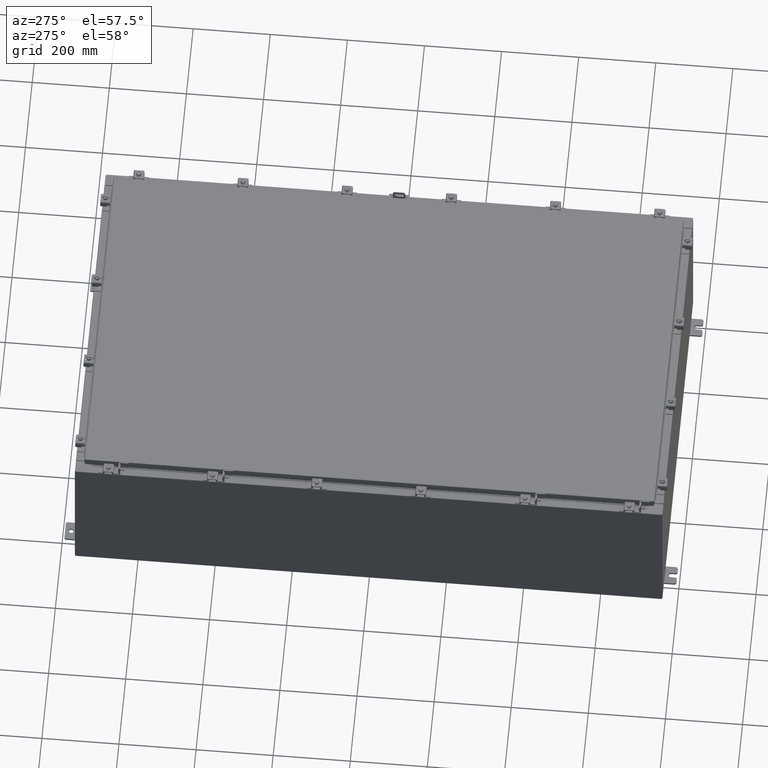
[diagram: clean part render]
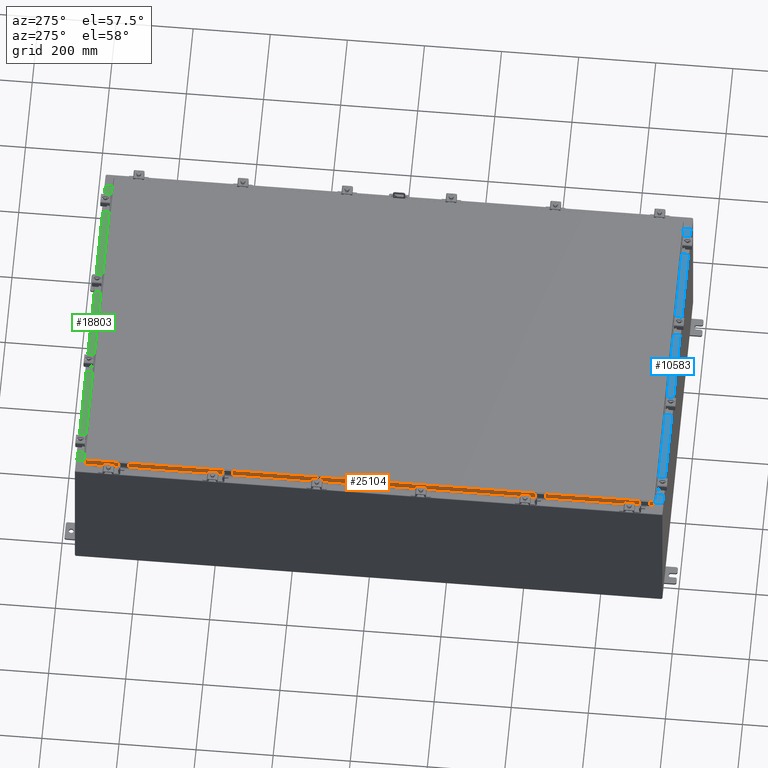
[diagram: same view with three faces highlighted in distinct colors, each labeled with its STEP entity id]
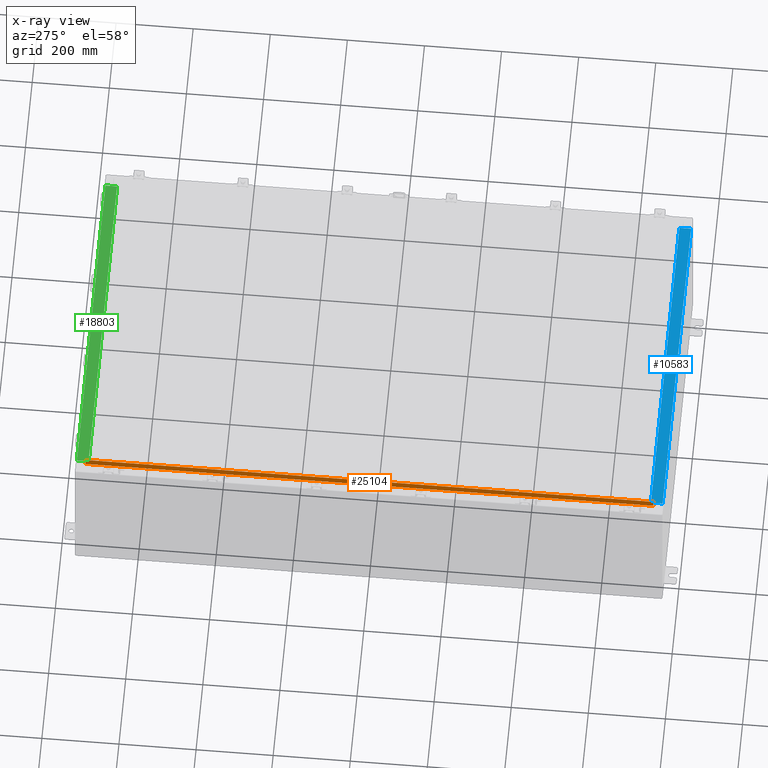
[diagram: x-ray of the same camera — body ghosted, the three highlighted faces saturated]
A machine part, auxiliary view with three faces highlighted in distinct colors.
The next image is the same camera in x-ray (body ghosted, the three faces saturated) — at least one of them is partly hidden behind the body in this view.
Their STEP definitions:

[orange] entity #25104 — the highlighted planar face has unit normal (1, 0, -0).
#109 = VECTOR ( 'NONE', #1504, 39.37007874015748100 ) ;
#153 = ORIENTED_EDGE ( 'NONE', *, *, #21083, .F. ) ;
#998 = EDGE_LOOP ( 'NONE', ( #26318, #5858, #10007, #6908, #16291, #153 ) ) ;
#1504 = DIRECTION ( 'NONE',  ( 4.379057701015054300E-047, 1.000000000000000000, 1.197190551977018000E-016 ) ) ;
#2071 = CARTESIAN_POINT ( 'NONE',  ( -17.07799999999998500, -28.25515786437626500, -0.8500000000000017500 ) ) ;
#2789 = VECTOR ( 'NONE', #12047, 39.37007874015748100 ) ;
#2891 = DIRECTION ( 'NONE',  ( 1.000000000000000000, 3.374737631835138300E-031, -2.818880942772360100E-015 ) ) ;
#2997 = VERTEX_POINT ( 'NONE', #24329 ) ;
#3029 = DIRECTION ( 'NONE',  ( 4.379057701015054300E-047, 1.000000000000000000, 1.197190551977018000E-016 ) ) ;
#3465 = LINE ( 'NONE', #5524, #2789 ) ;
#4785 = VECTOR ( 'NONE', #10382, 39.37007874015748100 ) ;
#5226 = VERTEX_POINT ( 'NONE', #12866 ) ;
#5325 = VERTEX_POINT ( 'NONE', #19477 ) ;
#5524 = CARTESIAN_POINT ( 'NONE',  ( -17.07799999999999600, 29.00515786437626500, 2.509435972240157400E-013 ) ) ;
#5858 = ORIENTED_EDGE ( 'NONE', *, *, #9441, .T. ) ;
#6908 = ORIENTED_EDGE ( 'NONE', *, *, #18072, .F. ) ;
#9297 = VERTEX_POINT ( 'NONE', #26475 ) ;
#9441 = EDGE_CURVE ( 'NONE', #2997, #9297, #3465, .T. ) ;
#9709 = VERTEX_POINT ( 'NONE', #2071 ) ;
#10007 = ORIENTED_EDGE ( 'NONE', *, *, #10172, .F. ) ;
#10172 = EDGE_CURVE ( 'NONE', #5226, #9297, #27095, .T. ) ;
#10333 = DIRECTION ( 'NONE',  ( -2.818880942772360100E-015, 6.982962677686265900E-015, -1.000000000000000000 ) ) ;
#10360 = VECTOR ( 'NONE', #3029, 39.37007874015748100 ) ;
#10382 = DIRECTION ( 'NONE',  ( 3.374737631835139200E-031, -1.000000000000000000, -9.198750492177080800E-046 ) ) ;
#11023 = LINE ( 'NONE', #17937, #10360 ) ;
#11354 = CARTESIAN_POINT ( 'NONE',  ( -17.07799999999999600, -5.763376927648048400E-030, 4.840166239667793400E-014 ) ) ;
#11786 = EDGE_CURVE ( 'NONE', #2997, #12892, #16136, .T. ) ;
#12047 = DIRECTION ( 'NONE',  ( -2.818880942772360100E-015, 6.982962677686265900E-015, -1.000000000000000000 ) ) ;
#12866 = CARTESIAN_POINT ( 'NONE',  ( -17.07799999999998500, 28.25515786437626500, -0.8500000000000017500 ) ) ;
#12892 = VERTEX_POINT ( 'NONE', #17223 ) ;
#14230 = CARTESIAN_POINT ( 'NONE',  ( -17.07799999999999900, -29.09400000000000500, -0.8499999999999996400 ) ) ;
#14566 = CARTESIAN_POINT ( 'NONE',  ( -17.07799999999999600, -29.09400000000000500, -0.08770000000000007000 ) ) ;
#15615 = PLANE ( 'NONE',  #20117 ) ;
#16136 = LINE ( 'NONE', #14566, #4785 ) ;
#16291 = ORIENTED_EDGE ( 'NONE', *, *, #23444, .F. ) ;
#16544 = LINE ( 'NONE', #23130, #22902 ) ;
#17223 = CARTESIAN_POINT ( 'NONE',  ( -17.07799999999999600, -29.00515786437627600, -0.08770000000000007000 ) ) ;
#17780 = DIRECTION ( 'NONE',  ( -2.818880942772360100E-015, 0.0000000000000000000, -1.000000000000000000 ) ) ;
#17937 = CARTESIAN_POINT ( 'NONE',  ( -17.07799999999999900, -29.09400000000000500, -0.8499999999999996400 ) ) ;
#18072 = EDGE_CURVE ( 'NONE', #9709, #5226, #26310, .T. ) ;
#19477 = CARTESIAN_POINT ( 'NONE',  ( -17.07799999999999900, -29.00515786437626500, -0.8499999999999996400 ) ) ;
#19545 = CARTESIAN_POINT ( 'NONE',  ( -17.07799999999998500, -28.25515786437626500, -0.8500000000000017500 ) ) ;
#20117 = AXIS2_PLACEMENT_3D ( 'NONE', #11354, #2891, #17780 ) ;
#21083 = EDGE_CURVE ( 'NONE', #12892, #5325, #16544, .T. ) ;
#22902 = VECTOR ( 'NONE', #10333, 39.37007874015748100 ) ;
#23130 = CARTESIAN_POINT ( 'NONE',  ( -17.07799999999999600, -29.00515786437627200, -0.07469999999999978000 ) ) ;
#23444 = EDGE_CURVE ( 'NONE', #5325, #9709, #11023, .T. ) ;
#24329 = CARTESIAN_POINT ( 'NONE',  ( -17.07799999999999600, 29.00515786437626500, -0.08770000000000007000 ) ) ;
#25104 = ADVANCED_FACE ( 'NONE', ( #27292 ), #15615, .F. ) ;
#25670 = VECTOR ( 'NONE', #25978, 39.37007874015748100 ) ;
#25978 = DIRECTION ( 'NONE',  ( -0.0000000000000000000, 1.000000000000000000, -0.0000000000000000000 ) ) ;
#26310 = LINE ( 'NONE', #19545, #25670 ) ;
#26318 = ORIENTED_EDGE ( 'NONE', *, *, #11786, .F. ) ;
#26475 = CARTESIAN_POINT ( 'NONE',  ( -17.07799999999999900, 29.00515786437627200, -0.8499999999999927600 ) ) ;
#27095 = LINE ( 'NONE', #14230, #109 ) ;
#27292 = FACE_OUTER_BOUND ( 'NONE', #998, .T. ) ;

[blue] entity #10583 — the highlighted planar face has unit normal (-0, -0, 1).
#128 = CARTESIAN_POINT ( 'NONE',  ( -16.63720000000000000, -0.07469999999999973900, 8.000000000000001800 ) ) ;
#861 = VERTEX_POINT ( 'NONE', #8330 ) ;
#1283 = EDGE_CURVE ( 'NONE', #2946, #26228, #19771, .T. ) ;
#1634 = CARTESIAN_POINT ( 'NONE',  ( -16.63720000000000000, -1.287299999999999400, 8.000000000000007100 ) ) ;
#2210 = ORIENTED_EDGE ( 'NONE', *, *, #1283, .F. ) ;
#2507 = CARTESIAN_POINT ( 'NONE',  ( 5.250912337413644300E-016, 2.852545452309695200E-014, 8.000000000000001800 ) ) ;
#2824 = CARTESIAN_POINT ( 'NONE',  ( 16.63720000000000400, -0.08770000000000102700, 8.000000000000000000 ) ) ;
#2946 = VERTEX_POINT ( 'NONE', #2824 ) ;
#4693 = CARTESIAN_POINT ( 'NONE',  ( 16.63720000000000000, -1.287300000000000300, 8.000000000000003600 ) ) ;
#5025 = VERTEX_POINT ( 'NONE', #1634 ) ;
#5467 = ORIENTED_EDGE ( 'NONE', *, *, #19099, .F. ) ;
#5756 = LINE ( 'NONE', #22620, #10107 ) ;
#6187 = EDGE_CURVE ( 'NONE', #2946, #861, #9086, .T. ) ;
#6278 = VECTOR ( 'NONE', #15001, 39.37007874015748100 ) ;
#6369 = EDGE_CURVE ( 'NONE', #26228, #5025, #5756, .T. ) ;
#6999 = CARTESIAN_POINT ( 'NONE',  ( 5.308514113925181600E-016, -0.08770000000000136000, 8.000000000000001800 ) ) ;
#7441 = ORIENTED_EDGE ( 'NONE', *, *, #6369, .F. ) ;
#7669 = DIRECTION ( 'NONE',  ( -1.000000000000000000, 0.0000000000000000000, 0.0000000000000000000 ) ) ;
#8330 = CARTESIAN_POINT ( 'NONE',  ( -16.63720000000000000, -0.08770000000000136000, 8.000000000000001800 ) ) ;
#9003 = DIRECTION ( 'NONE',  ( 6.568047492761433500E-017, 3.566381192773190000E-015, 1.000000000000000000 ) ) ;
#9086 = LINE ( 'NONE', #6999, #24789 ) ;
#10107 = VECTOR ( 'NONE', #7669, 39.37007874015748100 ) ;
#10583 = ADVANCED_FACE ( 'NONE', ( #13373 ), #19546, .T. ) ;
#11321 = DIRECTION ( 'NONE',  ( -1.000000000000000000, -6.568047492761434800E-017, 6.568047492761457000E-017 ) ) ;
#12392 = ORIENTED_EDGE ( 'NONE', *, *, #6187, .T. ) ;
#12895 = EDGE_LOOP ( 'NONE', ( #5467, #7441, #2210, #12392 ) ) ;
#13373 = FACE_OUTER_BOUND ( 'NONE', #12895, .T. ) ;
#14097 = VECTOR ( 'NONE', #17859, 39.37007874015748100 ) ;
#15001 = DIRECTION ( 'NONE',  ( -0.0000000000000000000, 1.000000000000000000, -3.566381192773190000E-015 ) ) ;
#16101 = AXIS2_PLACEMENT_3D ( 'NONE', #2507, #9003, #23940 ) ;
#16157 = CARTESIAN_POINT ( 'NONE',  ( 16.63720000000000000, -1.300299999999999800, 8.000000000000003600 ) ) ;
#16966 = LINE ( 'NONE', #128, #6278 ) ;
#17859 = DIRECTION ( 'NONE',  ( -0.0000000000000000000, -1.000000000000000000, 3.566381192773190000E-015 ) ) ;
#19099 = EDGE_CURVE ( 'NONE', #5025, #861, #16966, .T. ) ;
#19546 = PLANE ( 'NONE',  #16101 ) ;
#19771 = LINE ( 'NONE', #16157, #14097 ) ;
#22620 = CARTESIAN_POINT ( 'NONE',  ( 16.63720000000000400, -1.287300000000000300, 8.000000000000003600 ) ) ;
#23940 = DIRECTION ( 'NONE',  ( 0.0000000000000000000, -1.000000000000000000, 3.566381192773190000E-015 ) ) ;
#24789 = VECTOR ( 'NONE', #11321, 39.37007874015748100 ) ;
#26228 = VERTEX_POINT ( 'NONE', #4693 ) ;

[green] entity #18803 — the highlighted planar face has unit normal (0, 0, 1).
#2088 = CARTESIAN_POINT ( 'NONE',  ( -16.63720000000000000, -0.08770000000000136000, 8.000000000000001800 ) ) ;
#2279 = CARTESIAN_POINT ( 'NONE',  ( 16.63720000000000000, -1.287300000000000300, 8.000000000000003600 ) ) ;
#2649 = DIRECTION ( 'NONE',  ( 0.0000000000000000000, -1.000000000000000000, 3.566381192773190000E-015 ) ) ;
#2934 = ORIENTED_EDGE ( 'NONE', *, *, #5314, .T. ) ;
#3432 = CARTESIAN_POINT ( 'NONE',  ( 16.63720000000000000, -1.300299999999999800, 8.000000000000003600 ) ) ;
#4451 = VERTEX_POINT ( 'NONE', #9272 ) ;
#5314 = EDGE_CURVE ( 'NONE', #7635, #11875, #18839, .T. ) ;
#5661 = VECTOR ( 'NONE', #27536, 39.37007874015748100 ) ;
#6317 = VECTOR ( 'NONE', #24773, 39.37007874015748100 ) ;
#6591 = CARTESIAN_POINT ( 'NONE',  ( 5.308514113925181600E-016, -0.08770000000000136000, 8.000000000000001800 ) ) ;
#7635 = VERTEX_POINT ( 'NONE', #23090 ) ;
#8480 = LINE ( 'NONE', #16355, #24836 ) ;
#8869 = EDGE_CURVE ( 'NONE', #24192, #4451, #8480, .T. ) ;
#9272 = CARTESIAN_POINT ( 'NONE',  ( -16.63720000000000000, -1.287299999999999400, 8.000000000000007100 ) ) ;
#9601 = ORIENTED_EDGE ( 'NONE', *, *, #23704, .F. ) ;
#9852 = EDGE_LOOP ( 'NONE', ( #9601, #23867, #23043, #2934 ) ) ;
#11875 = VERTEX_POINT ( 'NONE', #2088 ) ;
#12624 = CARTESIAN_POINT ( 'NONE',  ( -16.63720000000000000, -0.07469999999999973900, 8.000000000000001800 ) ) ;
#13027 = DIRECTION ( 'NONE',  ( -1.000000000000000000, -6.568047492761434800E-017, 6.568047492761457000E-017 ) ) ;
#13122 = VECTOR ( 'NONE', #13027, 39.37007874015748100 ) ;
#13246 = PLANE ( 'NONE',  #17520 ) ;
#15394 = DIRECTION ( 'NONE',  ( 6.568047492761433500E-017, 3.566381192773190000E-015, 1.000000000000000000 ) ) ;
#15634 = LINE ( 'NONE', #12624, #5661 ) ;
#16355 = CARTESIAN_POINT ( 'NONE',  ( 16.63720000000000400, -1.287300000000000300, 8.000000000000003600 ) ) ;
#17134 = EDGE_CURVE ( 'NONE', #7635, #24192, #17652, .T. ) ;
#17520 = AXIS2_PLACEMENT_3D ( 'NONE', #23811, #15394, #2649 ) ;
#17652 = LINE ( 'NONE', #3432, #6317 ) ;
#17954 = FACE_OUTER_BOUND ( 'NONE', #9852, .T. ) ;
#18803 = ADVANCED_FACE ( 'NONE', ( #17954 ), #13246, .T. ) ;
#18839 = LINE ( 'NONE', #6591, #13122 ) ;
#22912 = DIRECTION ( 'NONE',  ( -1.000000000000000000, 0.0000000000000000000, 0.0000000000000000000 ) ) ;
#23043 = ORIENTED_EDGE ( 'NONE', *, *, #17134, .F. ) ;
#23090 = CARTESIAN_POINT ( 'NONE',  ( 16.63720000000000400, -0.08770000000000102700, 8.000000000000000000 ) ) ;
#23704 = EDGE_CURVE ( 'NONE', #4451, #11875, #15634, .T. ) ;
#23811 = CARTESIAN_POINT ( 'NONE',  ( 5.250912337413644300E-016, 2.852545452309695200E-014, 8.000000000000001800 ) ) ;
#23867 = ORIENTED_EDGE ( 'NONE', *, *, #8869, .F. ) ;
#24192 = VERTEX_POINT ( 'NONE', #2279 ) ;
#24773 = DIRECTION ( 'NONE',  ( -0.0000000000000000000, -1.000000000000000000, 3.566381192773190000E-015 ) ) ;
#24836 = VECTOR ( 'NONE', #22912, 39.37007874015748100 ) ;
#27536 = DIRECTION ( 'NONE',  ( -0.0000000000000000000, 1.000000000000000000, -3.566381192773190000E-015 ) ) ;